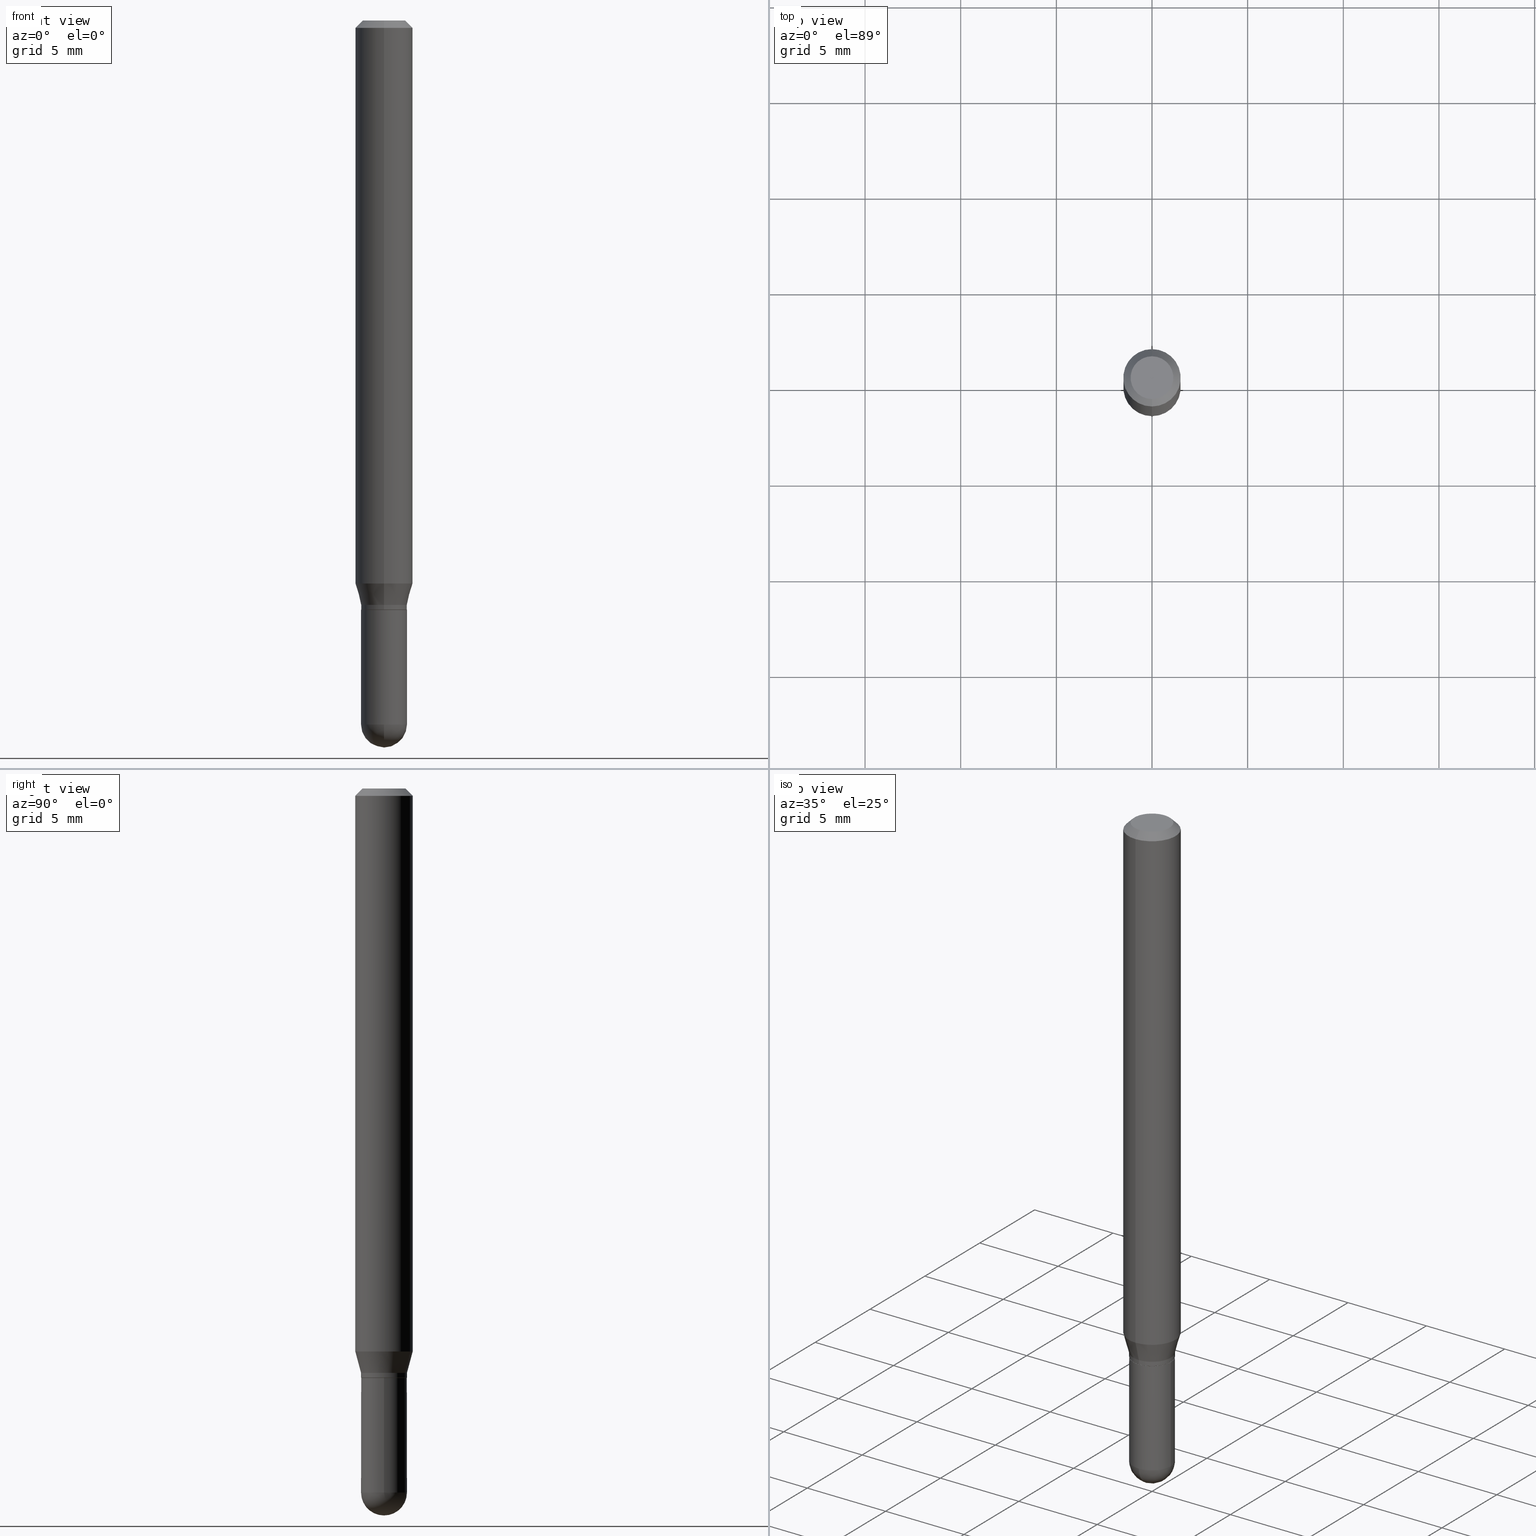
[diagram: canonical four-view strip — front | top / right | iso, engineering-drawing reading convention]
A machine part, canonical four-view strip (front | top / right | iso — engineering-drawing reading convention). The complete STEP part file that produces these views, byte-faithful:
ISO-10303-21;
HEADER;
FILE_DESCRIPTION (( 'STEP AP203' ),
    '1' );
FILE_NAME ('02953.STEP',
    '2024-03-07T22:01:41',
    ( '' ),
    ( '' ),
    'SwSTEP 2.0',
    'SolidWorks 2023',
    '' );
FILE_SCHEMA (( 'CONFIG_CONTROL_DESIGN' ));
ENDSEC;

DATA;
#1 = EDGE_CURVE ( 'NONE', #50, #485, #9, .T. ) ;
#2 = VERTEX_POINT ( 'NONE', #166 ) ;
#3 = AXIS2_PLACEMENT_3D ( 'NONE', #43, #85, #234 ) ;
#4 = PRODUCT ( '02953', '02953', '', ( #274 ) ) ;
#5 = COORDINATED_UNIVERSAL_TIME_OFFSET ( 5, 0, .BEHIND. ) ;
#6 = FACE_OUTER_BOUND ( 'NONE', #300, .T. ) ;
#7 = DATE_TIME_ROLE ( 'creation_date' ) ;
#8 = CARTESIAN_POINT ( 'NONE',  ( 2.964202519648990500E-29, -4.231953243488207905E-15, -1.212099999999999955 ) ) ;
#9 = CIRCLE ( 'NONE', #272, 0.04724999999999993788 ) ;
#10 = CALENDAR_DATE ( 2024, 7, 3 ) ;
#11 = CIRCLE ( 'NONE', #140, 0.04724999999999999339 ) ;
#12 = ORIENTED_EDGE ( 'NONE', *, *, #460, .F. ) ;
#13 = DIRECTION ( 'NONE',  ( -2.445509875133232403E-29, 3.491422525771973150E-15, 1.000000000000000000 ) ) ;
#14 = DIRECTION ( 'NONE',  ( -6.982962677686265922E-15, -1.000000000000000000, 4.626330217890369336E-15 ) ) ;
#15 = FACE_OUTER_BOUND ( 'NONE', #26, .T. ) ;
#16 = EDGE_LOOP ( 'NONE', ( #421, #394, #143, #70 ) ) ;
#17 = AXIS2_PLACEMENT_3D ( 'NONE', #455, #444, #244 ) ;
#18 = DIRECTION ( 'NONE',  ( 1.000000000000000000, -6.982962677686267499E-15, 0.000000000000000000 ) ) ;
#19 = DIRECTION ( 'NONE',  ( -2.445509875133232403E-29, 3.491422525771973150E-15, 1.000000000000000000 ) ) ;
#20 = CARTESIAN_POINT ( 'NONE',  ( 3.357314426466824445E-16, 0.04724999999999490025, -1.448850000000000415 ) ) ;
#21 = DIRECTION ( 'NONE',  ( -2.445509875133232403E-29, 3.491422525771973150E-15, 1.000000000000000000 ) ) ;
#22 = ADVANCED_FACE ( 'NONE', ( #319 ), #89, .T. ) ;
#23 = DIRECTION ( 'NONE',  ( -2.445468806185136597E-29, 3.491481338843145583E-15, 1.000000000000000000 ) ) ;
#24 = CIRCLE ( 'NONE', #476, 0.04674999999999999295 ) ;
#25 = DIRECTION ( 'NONE',  ( -2.445509875133232403E-29, 3.491422525771973150E-15, 1.000000000000000000 ) ) ;
#26 = EDGE_LOOP ( 'NONE', ( #109, #99, #392, #374 ) ) ;
#27 = DIRECTION ( 'NONE',  ( -6.982962677686266711E-15, -1.000000000000000000, 2.921762560068730989E-15 ) ) ;
#28 = ORIENTED_EDGE ( 'NONE', *, *, #129, .T. ) ;
#29 = FACE_OUTER_BOUND ( 'NONE', #171, .T. ) ;
#30 = DIRECTION ( 'NONE',  ( -2.445509875133232683E-29, 3.491422525771973150E-15, 1.000000000000000000 ) ) ;
#31 = ORIENTED_EDGE ( 'NONE', *, *, #343, .T. ) ;
#32 = CARTESIAN_POINT ( 'NONE',  ( 3.599717260347271507E-16, 0.04404999999999999888, -2.454645658922200893E-16 ) ) ;
#33 = ORIENTED_EDGE ( 'NONE', *, *, #320, .F. ) ;
#34 = CONICAL_SURFACE ( 'NONE', #313, 0.05904999999999999832, 0.7853981633974483900 ) ;
#35 = VERTEX_POINT ( 'NONE', #483 ) ;
#36 = APPLICATION_PROTOCOL_DEFINITION ( 'international standard', 'config_control_design', 1994, #381 ) ;
#37 = CIRCLE ( 'NONE', #44, 0.04724999999999998646 ) ;
#38 = AXIS2_PLACEMENT_3D ( 'NONE', #289, #54, #173 ) ;
#39 = AXIS2_PLACEMENT_3D ( 'NONE', #301, #253, #419 ) ;
#40 = APPROVAL_DATE_TIME ( #430, #278 ) ;
#41 = DIRECTION ( 'NONE',  ( 1.000000000000000000, 0.000000000000000000, 0.000000000000000000 ) ) ;
#42 = PERSON_AND_ORGANIZATION ( #408, #297 ) ;
#43 = CARTESIAN_POINT ( 'NONE',  ( 2.965425274586557416E-29, -4.233698954751094206E-15, -1.212599999999999900 ) ) ;
#44 = AXIS2_PLACEMENT_3D ( 'NONE', #366, #451, #100 ) ;
#45 = AXIS2_PLACEMENT_3D ( 'NONE', #67, #228, #149 ) ;
#46 = SHAPE_DEFINITION_REPRESENTATION ( #231, #373 ) ;
#47 = APPROVAL_PERSON_ORGANIZATION ( #469, #278, #110 ) ;
#48 = ADVANCED_FACE ( 'NONE', ( #15 ), #396, .T. ) ;
#49 = CARTESIAN_POINT ( 'NONE',  ( 0.000000000000000000, 0.000000000000000000, 0.000000000000000000 ) ) ;
#50 = VERTEX_POINT ( 'NONE', #441 ) ;
#51 = EDGE_CURVE ( 'NONE', #35, #463, #195, .T. ) ;
#52 = CARTESIAN_POINT ( 'NONE',  ( 3.357314426466476853E-16, 0.04725000000000005584, -1.649697143427259488E-16 ) ) ;
#53 = AXIS2_PLACEMENT_3D ( 'NONE', #180, #406, #130 ) ;
#54 = DIRECTION ( 'NONE',  ( -2.445509875133232403E-29, 3.491422525771973150E-15, 1.000000000000000000 ) ) ;
#55 = VERTEX_POINT ( 'NONE', #136 ) ;
#56 = CARTESIAN_POINT ( 'NONE',  ( 2.940970175835225274E-29, -4.198784729493374495E-15, -1.202599999999999891 ) ) ;
#57 = ORIENTED_EDGE ( 'NONE', *, *, #320, .T. ) ;
#58 = CARTESIAN_POINT ( 'NONE',  ( 0.04724999999999998646, -3.299449865206760074E-16, 2.303993526563579130E-30 ) ) ;
#59 = CLOSED_SHELL ( 'NONE', ( #395, #178, #86, #137, #350 ) ) ;
#60 = VERTEX_POINT ( 'NONE', #145 ) ;
#61 = APPROVAL_STATUS ( 'not_yet_approved' ) ;
#62 = EDGE_CURVE ( 'NONE', #250, #218, #292, .T. ) ;
#63 = CARTESIAN_POINT ( 'NONE',  ( -4.123439461173736383E-16, -0.05905000000000005383, -0.01499999999999988495 ) ) ;
#64 = DIRECTION ( 'NONE',  ( -6.982962677686265922E-15, -1.000000000000000000, 2.890844437739957528E-15 ) ) ;
#65 = EDGE_LOOP ( 'NONE', ( #33, #443, #162, #498, #191 ) ) ;
#66 = CARTESIAN_POINT ( 'NONE',  ( 0.000000000000000000, 0.000000000000000000, 0.000000000000000000 ) ) ;
#67 = CARTESIAN_POINT ( 'NONE',  ( 2.964202519648990500E-29, -4.231953243488207905E-15, -1.212099999999999955 ) ) ;
#68 = EDGE_LOOP ( 'NONE', ( #124, #456, #169, #186 ) ) ;
#69 = DIRECTION ( 'NONE',  ( -2.445509875133232403E-29, 3.491422525771973150E-15, 1.000000000000000000 ) ) ;
#70 = ORIENTED_EDGE ( 'NONE', *, *, #499, .F. ) ;
#71 = VECTOR ( 'NONE', #311, 39.37007874015748143 ) ;
#72 = LOCAL_TIME ( 17, 1, 41.00000000000000000, #414 ) ;
#73 = CARTESIAN_POINT ( 'NONE',  ( 2.965425274586557416E-29, -4.233698954751094206E-15, -1.212599999999999900 ) ) ;
#74 = EDGE_CURVE ( 'NONE', #259, #485, #37, .T. ) ;
#75 = CARTESIAN_POINT ( 'NONE',  ( 2.241735408097937427E-45, -3.200496379196732715E-31, -9.166740363196474463E-17 ) ) ;
#76 = CALENDAR_DATE ( 2024, 7, 3 ) ;
#77 = CARTESIAN_POINT ( 'NONE',  ( -3.299449865206764511E-16, -0.04725000000000005584, 1.649697143427259488E-16 ) ) ;
#78 = PRODUCT_DEFINITION ( 'UNKNOWN', '', #95, #454 ) ;
#79 = AXIS2_PLACEMENT_3D ( 'NONE', #245, #401, #260 ) ;
#80 = CONICAL_SURFACE ( 'NONE', #321, 0.04725000000000005584, 0.2617993877991504625 ) ;
#81 = APPROVAL_ROLE ( '' ) ;
#82 = APPLICATION_PROTOCOL_DEFINITION ( 'international standard', 'config_control_design', 1994, #424 ) ;
#83 = CARTESIAN_POINT ( 'NONE',  ( 4.195754854663673496E-16, 0.05904999999999594601, -1.158561800470687686 ) ) ;
#84 = CC_DESIGN_DATE_AND_TIME_ASSIGNMENT ( #309, #7, ( #78 ) ) ;
#85 = DIRECTION ( 'NONE',  ( -2.445509875133232403E-29, 3.491422525771973150E-15, 1.000000000000000000 ) ) ;
#86 = ADVANCED_FACE ( 'NONE', ( #29 ), #411, .F. ) ;
#87 = ORIENTED_EDGE ( 'NONE', *, *, #269, .T. ) ;
#88 = ORIENTED_EDGE ( 'NONE', *, *, #148, .T. ) ;
#89 = CYLINDRICAL_SURFACE ( 'NONE', #339, 0.04725000000000005584 ) ;
#90 = ORIENTED_EDGE ( 'NONE', *, *, #1, .T. ) ;
#91 = ADVANCED_FACE ( 'NONE', ( #368 ), #97, .T. ) ;
#92 = VERTEX_POINT ( 'NONE', #63 ) ;
#93 = CYLINDRICAL_SURFACE ( 'NONE', #177, 0.05904999999999999832 ) ;
#94 = CIRCLE ( 'NONE', #418, 0.04724999999999998646 ) ;
#95 = PRODUCT_DEFINITION_FORMATION_WITH_SPECIFIED_SOURCE ( 'ANY', '', #4, .NOT_KNOWN. ) ;
#96 = DIRECTION ( 'NONE',  ( -2.445509875133232403E-29, 3.491422525771973150E-15, 1.000000000000000000 ) ) ;
#97 = CYLINDRICAL_SURFACE ( 'NONE', #295, 0.04725000000000005584 ) ;
#98 = LINE ( 'NONE', #246, #447 ) ;
#99 = ORIENTED_EDGE ( 'NONE', *, *, #263, .T. ) ;
#100 = DIRECTION ( 'NONE',  ( 1.000000000000000000, -6.982962677686267499E-15, 0.000000000000000000 ) ) ;
#101 = CARTESIAN_POINT ( 'NONE',  ( 3.357314426466771690E-16, 0.04724999999999579536, -1.212099999999999955 ) ) ;
#102 = EDGE_LOOP ( 'NONE', ( #459, #219, #413, #205 ) ) ;
#103 = DIRECTION ( 'NONE',  ( -6.982962677686265922E-15, -1.000000000000000000, 3.491422525771973544E-15 ) ) ;
#104 = AXIS2_PLACEMENT_3D ( 'NONE', #8, #480, #276 ) ;
#105 = CC_DESIGN_APPROVAL ( #278, ( #505 ) ) ;
#106 = ORIENTED_EDGE ( 'NONE', *, *, #168, .F. ) ;
#107 = CALENDAR_DATE ( 2024, 7, 3 ) ;
#108 = DIRECTION ( 'NONE',  ( -2.445468806185136597E-29, 3.491481338843145583E-15, 1.000000000000000000 ) ) ;
#109 = ORIENTED_EDGE ( 'NONE', *, *, #155, .T. ) ;
#110 = APPROVAL_ROLE ( '' ) ;
#111 = DIRECTION ( 'NONE',  ( 1.000000000000000000, -6.982962677686267499E-15, 0.000000000000000000 ) ) ;
#112 = SPHERICAL_SURFACE ( 'NONE', #429, 0.04724999999999993788 ) ;
#113 = DIRECTION ( 'NONE',  ( 4.937700262164548042E-15, 0.7071067811865451302, -0.7071067811865499042 ) ) ;
#114 = ORIENTED_EDGE ( 'NONE', *, *, #148, .F. ) ;
#115 =( CONVERSION_BASED_UNIT ( 'INCH', #223 ) LENGTH_UNIT ( ) NAMED_UNIT ( #448 ) );
#116 = DIRECTION ( 'NONE',  ( -1.807323732225331323E-15, -0.2588190451025183525, 0.9659258262890689783 ) ) ;
#117 = AXIS2_PLACEMENT_3D ( 'NONE', #221, #146, #307 ) ;
#118 = LINE ( 'NONE', #427, #287 ) ;
#119 = DIRECTION ( 'NONE',  ( -2.445509875133232403E-29, 3.491422525771973150E-15, 1.000000000000000000 ) ) ;
#120 = AXIS2_PLACEMENT_3D ( 'NONE', #267, #108, #261 ) ;
#121 = CALENDAR_DATE ( 2024, 7, 3 ) ;
#122 = DIRECTION ( 'NONE',  ( 1.000000000000000000, -6.982962677686266711E-15, 4.876176775795935793E-29 ) ) ;
#123 = LINE ( 'NONE', #165, #71 ) ;
#124 = ORIENTED_EDGE ( 'NONE', *, *, #393, .T. ) ;
#125 = ORIENTED_EDGE ( 'NONE', *, *, #378, .T. ) ;
#126 = MANIFOLD_SOLID_BREP ( 'Body-Move/Copy2[1]', #59 ) ;
#127 = VECTOR ( 'NONE', #472, 39.37007874015748143 ) ;
#128 = DIRECTION ( 'NONE',  ( -2.445509875133232403E-29, 3.491422525771973150E-15, 1.000000000000000000 ) ) ;
#129 = EDGE_CURVE ( 'NONE', #92, #511, #229, .T. ) ;
#130 = DIRECTION ( 'NONE',  ( 1.000000000000000000, -6.982962677686256455E-15, 0.000000000000000000 ) ) ;
#131 = LINE ( 'NONE', #58, #386 ) ;
#132 = CARTESIAN_POINT ( 'NONE',  ( 3.543117479841335070E-29, -5.058632737782891656E-15, -1.448849999999999971 ) ) ;
#133 = CYLINDRICAL_SURFACE ( 'NONE', #160, 0.05904999999999999832 ) ;
#134 = AXIS2_PLACEMENT_3D ( 'NONE', #446, #96, #213 ) ;
#135 = LOCAL_TIME ( 17, 1, 41.00000000000000000, #5 ) ;
#136 = CARTESIAN_POINT ( 'NONE',  ( -4.123439461173456337E-16, -0.05905000000000405758, -1.158561800470687464 ) ) ;
#137 = ADVANCED_FACE ( 'NONE', ( #506 ), #112, .T. ) ;
#138 = ORIENTED_EDGE ( 'NONE', *, *, #460, .T. ) ;
#139 = VERTEX_POINT ( 'NONE', #337 ) ;
#140 = AXIS2_PLACEMENT_3D ( 'NONE', #270, #423, #502 ) ;
#141 = FACE_OUTER_BOUND ( 'NONE', #65, .T. ) ;
#142 = CC_DESIGN_APPROVAL ( #369, ( #95 ) ) ;
#143 = ORIENTED_EDGE ( 'NONE', *, *, #51, .F. ) ;
#144 = DATE_TIME_ROLE ( 'classification_date' ) ;
#145 = CARTESIAN_POINT ( 'NONE',  ( -0.04724999999999999339, -4.310470061985398025E-15, -1.212599999999999900 ) ) ;
#146 = DIRECTION ( 'NONE',  ( -1.000000000000000000, 6.982962677686265922E-15, -4.883557194083112340E-29 ) ) ;
#147 = ORIENTED_EDGE ( 'NONE', *, *, #155, .F. ) ;
#148 = EDGE_CURVE ( 'NONE', #184, #360, #207, .T. ) ;
#149 = DIRECTION ( 'NONE',  ( -6.982962677686265922E-15, -1.000000000000000000, 2.890844437739957528E-15 ) ) ;
#150 = DIRECTION ( 'NONE',  ( 1.839019923739601499E-15, 0.2588190451025251249, 0.9659258262890670910 ) ) ;
#151 = VECTOR ( 'NONE', #113, 39.37007874015748143 ) ;
#152 = ADVANCED_FACE ( 'NONE', ( #342 ), #346, .F. ) ;
#153 = CALENDAR_DATE ( 2024, 7, 3 ) ;
#154 = LINE ( 'NONE', #507, #482 ) ;
#155 = EDGE_CURVE ( 'NONE', #139, #324, #398, .T. ) ;
#156 = PERSON_AND_ORGANIZATION_ROLE ( 'creator' ) ;
#157 = CARTESIAN_POINT ( 'NONE',  ( 2.833274324003204060E-29, -4.045028767662292358E-15, -1.158561800470687464 ) ) ;
#158 = PERSON_AND_ORGANIZATION ( #408, #297 ) ;
#159 = CYLINDRICAL_SURFACE ( 'NONE', #215, 0.04724999999999998646 ) ;
#160 = AXIS2_PLACEMENT_3D ( 'NONE', #285, #249, #403 ) ;
#161 = DIRECTION ( 'NONE',  ( 0.000000000000000000, 0.000000000000000000, 1.000000000000000000 ) ) ;
#162 = ORIENTED_EDGE ( 'NONE', *, *, #495, .T. ) ;
#163 = FACE_OUTER_BOUND ( 'NONE', #291, .T. ) ;
#164 = ORIENTED_EDGE ( 'NONE', *, *, #306, .F. ) ;
#165 = CARTESIAN_POINT ( 'NONE',  ( 4.195754854663390985E-16, 0.05904999999999999832, -2.061685001468349986E-16 ) ) ;
#166 = CARTESIAN_POINT ( 'NONE',  ( 0.04724999999999999339, -4.563715258001873701E-15, -1.212599999999999900 ) ) ;
#167 = CIRCLE ( 'NONE', #134, 0.05904999999999999832 ) ;
#168 = EDGE_CURVE ( 'NONE', #222, #250, #190, .T. ) ;
#169 = ORIENTED_EDGE ( 'NONE', *, *, #129, .F. ) ;
#170 = DIRECTION ( 'NONE',  ( -2.445509875133232403E-29, 3.491422525771973150E-15, 1.000000000000000000 ) ) ;
#171 = EDGE_LOOP ( 'NONE', ( #283, #404 ) ) ;
#172 = CARTESIAN_POINT ( 'NONE',  ( 3.543117479841335070E-29, -5.058632737782891656E-15, -1.448849999999999971 ) ) ;
#173 = DIRECTION ( 'NONE',  ( -6.982962677686265133E-15, -1.000000000000000000, 3.491422525771973150E-15 ) ) ;
#174 = SECURITY_CLASSIFICATION_LEVEL ( 'unclassified' ) ;
#175 = ADVANCED_FACE ( 'NONE', ( #183 ), #93, .T. ) ;
#176 = FACE_OUTER_BOUND ( 'NONE', #332, .T. ) ;
#177 = AXIS2_PLACEMENT_3D ( 'NONE', #211, #19, #333 ) ;
#178 = ADVANCED_FACE ( 'NONE', ( #497 ), #367, .T. ) ;
#179 = DIRECTION ( 'NONE',  ( 5.024295867788190974E-15, 0.7071067811865681119, 0.7071067811865270336 ) ) ;
#180 = CARTESIAN_POINT ( 'NONE',  ( 2.965375474380096235E-29, -4.233770271481197693E-15, -1.212599999999999900 ) ) ;
#181 = ORIENTED_EDGE ( 'NONE', *, *, #241, .T. ) ;
#182 = DIRECTION ( 'NONE',  ( 2.438088387897960049E-29, -3.491481338843145188E-15, -1.000000000000000000 ) ) ;
#183 = FACE_OUTER_BOUND ( 'NONE', #68, .T. ) ;
#184 = VERTEX_POINT ( 'NONE', #323 ) ;
#185 = LINE ( 'NONE', #510, #151 ) ;
#186 = ORIENTED_EDGE ( 'NONE', *, *, #273, .F. ) ;
#187 = DIRECTION ( 'NONE',  ( -2.445468806185136597E-29, 3.491481338843145583E-15, 1.000000000000000000 ) ) ;
#188 = CARTESIAN_POINT ( 'NONE',  ( 3.075995059520799729E-16, 0.04404999999999999888, -1.996308640762377601E-16 ) ) ;
#189 = DIRECTION ( 'NONE',  ( -1.000000000000000000, 6.982962677686265922E-15, -4.876176775795935793E-29 ) ) ;
#190 = CIRCLE ( 'NONE', #196, 0.04674999999999999295 ) ;
#191 = ORIENTED_EDGE ( 'NONE', *, *, #200, .F. ) ;
#192 = CARTESIAN_POINT ( 'NONE',  ( -3.264535051818032208E-16, -0.04675000000000423261, -1.212599999999999900 ) ) ;
#193 = ORIENTED_EDGE ( 'NONE', *, *, #378, .F. ) ;
#194 = EDGE_CURVE ( 'NONE', #324, #139, #328, .T. ) ;
#195 = CIRCLE ( 'NONE', #264, 0.04724999999999998646 ) ;
#196 = AXIS2_PLACEMENT_3D ( 'NONE', #370, #25, #27 ) ;
#197 = CC_DESIGN_PERSON_AND_ORGANIZATION_ASSIGNMENT ( #158, #325, ( #95 ) ) ;
#198 = DATE_AND_TIME ( #10, #135 ) ;
#199 = DIRECTION ( 'NONE',  ( -4.851104656540964275E-15, -0.7071067811865500152, -0.7071067811865450192 ) ) ;
#200 = EDGE_CURVE ( 'NONE', #60, #2, #362, .T. ) ;
#201 = CARTESIAN_POINT ( 'NONE',  ( -3.299449865206404101E-16, -0.04725000000000502409, -1.448849999999999749 ) ) ;
#202 = VECTOR ( 'NONE', #30, 39.37007874015748143 ) ;
#203 = ADVANCED_FACE ( 'NONE', ( #176 ), #331, .F. ) ;
#204 = DIRECTION ( 'NONE',  ( -6.982962677686266711E-15, -1.000000000000000000, 2.921762560068730989E-15 ) ) ;
#205 = ORIENTED_EDGE ( 'NONE', *, *, #425, .F. ) ;
#206 = DIRECTION ( 'NONE',  ( 6.982962677686265922E-15, 1.000000000000000000, -3.505890868245046092E-15 ) ) ;
#207 = CIRCLE ( 'NONE', #237, 0.04404999999999999888 ) ;
#208 = CONICAL_SURFACE ( 'NONE', #329, 0.04674999999999999295, 0.7853981633974739252 ) ;
#209 = UNCERTAINTY_MEASURE_WITH_UNIT (LENGTH_MEASURE( 1.000000000000000082E-05 ), #115, 'distance_accuracy_value', 'NONE');
#210 = AXIS2_PLACEMENT_3D ( 'NONE', #172, #187, #111 ) ;
#211 = CARTESIAN_POINT ( 'NONE',  ( 0.000000000000000000, 0.000000000000000000, 0.000000000000000000 ) ) ;
#212 = ORIENTED_EDGE ( 'NONE', *, *, #263, .F. ) ;
#213 = DIRECTION ( 'NONE',  ( -6.982962677686265922E-15, -1.000000000000000000, 4.626330217890369336E-15 ) ) ;
#214 = EDGE_LOOP ( 'NONE', ( #303, #417, #31, #247 ) ) ;
#215 = AXIS2_PLACEMENT_3D ( 'NONE', #49, #318, #122 ) ;
#216 = DIRECTION ( 'NONE',  ( -2.445468806185136877E-29, 3.491481338843145188E-15, 1.000000000000000000 ) ) ;
#217 = LOCAL_TIME ( 17, 1, 41.00000000000000000, #298 ) ;
#218 = VERTEX_POINT ( 'NONE', #101 ) ;
#219 = ORIENTED_EDGE ( 'NONE', *, *, #255, .T. ) ;
#220 = DIRECTION ( 'NONE',  ( 1.000000000000000000, -6.982962677686266711E-15, 4.883557194083112901E-29 ) ) ;
#221 = CARTESIAN_POINT ( 'NONE',  ( 3.539076819124962473E-29, -5.064419193908863088E-15, -1.448849999999999971 ) ) ;
#222 = VERTEX_POINT ( 'NONE', #397 ) ;
#223 = LENGTH_MEASURE_WITH_UNIT ( LENGTH_MEASURE( 0.02539999999999999897 ), #336 );
#224 = CLOSED_SHELL ( 'NONE', ( #91, #365, #512, #175, #48, #390, #251, #464, #152, #203, #422, #22 ) ) ;
#225 = EDGE_LOOP ( 'NONE', ( #181, #88 ) ) ;
#226 = CC_DESIGN_PERSON_AND_ORGANIZATION_ASSIGNMENT ( #509, #375, ( #505 ) ) ;
#227 = DIRECTION ( 'NONE',  ( -6.982962677686266711E-15, -1.000000000000000000, 2.921762560068730989E-15 ) ) ;
#228 = DIRECTION ( 'NONE',  ( -2.445509875133232403E-29, 3.491422525771973150E-15, 1.000000000000000000 ) ) ;
#229 = CIRCLE ( 'NONE', #79, 0.05904999999999999832 ) ;
#230 = CONICAL_SURFACE ( 'NONE', #3, 0.04674999999999999295, 0.7853981633974739252 ) ;
#231 = PRODUCT_DEFINITION_SHAPE ( 'NONE', 'NONE',  #78 ) ;
#232 = COORDINATED_UNIVERSAL_TIME_OFFSET ( 5, 0, .BEHIND. ) ;
#233 = APPROVAL_DATE_TIME ( #198, #409 ) ;
#234 = DIRECTION ( 'NONE',  ( -6.982962677686266711E-15, -1.000000000000000000, 2.921762560068730989E-15 ) ) ;
#235 = FACE_OUTER_BOUND ( 'NONE', #280, .T. ) ;
#236 = AXIS2_PLACEMENT_3D ( 'NONE', #248, #182, #189 ) ;
#237 = AXIS2_PLACEMENT_3D ( 'NONE', #75, #13, #428 ) ;
#238 = CONICAL_SURFACE ( 'NONE', #39, 0.05904999999999999832, 0.7853981633974483900 ) ;
#239 = DIRECTION ( 'NONE',  ( 1.000000000000000000, -7.105427357601001070E-15, 4.926315508542082329E-29 ) ) ;
#240 = ORIENTED_EDGE ( 'NONE', *, *, #74, .F. ) ;
#241 = EDGE_CURVE ( 'NONE', #360, #184, #467, .T. ) ;
#242 = LINE ( 'NONE', #52, #382 ) ;
#243 = ORIENTED_EDGE ( 'NONE', *, *, #437, .T. ) ;
#244 = DIRECTION ( 'NONE',  ( -6.982962677686265922E-15, -1.000000000000000000, 3.491422525771973150E-15 ) ) ;
#245 = CARTESIAN_POINT ( 'NONE',  ( 3.668264812699871200E-31, -5.237133788657991279E-17, -0.01500000000000009139 ) ) ;
#246 = CARTESIAN_POINT ( 'NONE',  ( 3.357314426466771197E-16, 0.04724999999999585781, -1.202600000000000113 ) ) ;
#247 = ORIENTED_EDGE ( 'NONE', *, *, #425, .T. ) ;
#248 = CARTESIAN_POINT ( 'NONE',  ( 3.299449865207056883E-16, 0.04724999999999576067, -1.212600000000000122 ) ) ;
#249 = DIRECTION ( 'NONE',  ( -2.445509875133232403E-29, 3.491422525771973150E-15, 1.000000000000000000 ) ) ;
#250 = VERTEX_POINT ( 'NONE', #490 ) ;
#251 = ADVANCED_FACE ( 'NONE', ( #452 ), #133, .T. ) ;
#252 = AXIS2_PLACEMENT_3D ( 'NONE', #376, #170, #64 ) ;
#253 = DIRECTION ( 'NONE',  ( 2.445509875133232403E-29, -3.491422525771973150E-15, -1.000000000000000000 ) ) ;
#254 = DIRECTION ( 'NONE',  ( 1.000000000000000000, -6.982962677686267499E-15, 0.000000000000000000 ) ) ;
#255 = EDGE_CURVE ( 'NONE', #371, #55, #167, .T. ) ;
#256 = ORIENTED_EDGE ( 'NONE', *, *, #74, .T. ) ;
#257 = DATE_AND_TIME ( #107, #217 ) ;
#258 = FACE_OUTER_BOUND ( 'NONE', #359, .T. ) ;
#259 = VERTEX_POINT ( 'NONE', #327 ) ;
#260 = DIRECTION ( 'NONE',  ( -6.982962677686265922E-15, -1.000000000000000000, 3.505890868245046092E-15 ) ) ;
#261 = DIRECTION ( 'NONE',  ( 1.000000000000000000, -6.982962677686266711E-15, 4.876176775795935793E-29 ) ) ;
#262 = ORIENTED_EDGE ( 'NONE', *, *, #308, .F. ) ;
#263 = EDGE_CURVE ( 'NONE', #324, #371, #98, .T. ) ;
#264 = AXIS2_PLACEMENT_3D ( 'NONE', #132, #23, #254 ) ;
#265 = VECTOR ( 'NONE', #179, 39.37007874015748143 ) ;
#266 = CIRCLE ( 'NONE', #117, 0.04724999999999993788 ) ;
#267 = CARTESIAN_POINT ( 'NONE',  ( 0.000000000000000000, 0.000000000000000000, 0.000000000000000000 ) ) ;
#268 = APPROVAL_PERSON_ORGANIZATION ( #471, #369, #81 ) ;
#269 = EDGE_CURVE ( 'NONE', #222, #290, #412, .T. ) ;
#270 = CARTESIAN_POINT ( 'NONE',  ( 2.965375474380096235E-29, -4.233770271481197693E-15, -1.212599999999999900 ) ) ;
#271 = CC_DESIGN_PERSON_AND_ORGANIZATION_ASSIGNMENT ( #475, #156, ( #78 ) ) ;
#272 = AXIS2_PLACEMENT_3D ( 'NONE', #364, #239, #316 ) ;
#273 = EDGE_CURVE ( 'NONE', #55, #92, #154, .T. ) ;
#274 = MECHANICAL_CONTEXT ( 'NONE', #381, 'mechanical' ) ;
#275 = DIRECTION ( 'NONE',  ( 2.445509875133232123E-29, -3.491422525771973150E-15, -1.000000000000000000 ) ) ;
#276 = DIRECTION ( 'NONE',  ( -6.982962677686265922E-15, -1.000000000000000000, 2.890844437739957528E-15 ) ) ;
#277 = DIRECTION ( 'NONE',  ( 6.982962677686265922E-15, 1.000000000000000000, -3.491422525771973150E-15 ) ) ;
#278 = APPROVAL ( #61, 'UNSPECIFIED' ) ;
#279 = VECTOR ( 'NONE', #199, 39.37007874015748143 ) ;
#280 = EDGE_LOOP ( 'NONE', ( #494, #125, #87, #12 ) ) ;
#281 = CARTESIAN_POINT ( 'NONE',  ( 3.668264812699871200E-31, -5.237133788657991279E-17, -0.01500000000000009139 ) ) ;
#282 = DIRECTION ( 'NONE',  ( -6.982962677686265922E-15, -1.000000000000000000, 2.890844437739957528E-15 ) ) ;
#283 = ORIENTED_EDGE ( 'NONE', *, *, #308, .T. ) ;
#284 = CARTESIAN_POINT ( 'NONE',  ( 2.940970175835225274E-29, -4.198784729493374495E-15, -1.202599999999999891 ) ) ;
#285 = CARTESIAN_POINT ( 'NONE',  ( 0.000000000000000000, 0.000000000000000000, 0.000000000000000000 ) ) ;
#286 = ORIENTED_EDGE ( 'NONE', *, *, #255, .F. ) ;
#287 = VECTOR ( 'NONE', #116, 39.37007874015748854 ) ;
#288 = CC_DESIGN_APPROVAL ( #409, ( #78 ) ) ;
#289 = CARTESIAN_POINT ( 'NONE',  ( 2.241735408097937427E-45, -3.200496379196732715E-31, -9.166740363196474463E-17 ) ) ;
#290 = VERTEX_POINT ( 'NONE', #420 ) ;
#291 = EDGE_LOOP ( 'NONE', ( #341, #57, #262, #380, #256 ) ) ;
#292 = LINE ( 'NONE', #496, #265 ) ;
#293 = CARTESIAN_POINT ( 'NONE',  ( 3.539076819124962473E-29, -5.064419193908863088E-15, -1.448849999999999971 ) ) ;
#294 = ORIENTED_EDGE ( 'NONE', *, *, #343, .F. ) ;
#295 = AXIS2_PLACEMENT_3D ( 'NONE', #66, #458, #103 ) ;
#296 = VECTOR ( 'NONE', #416, 39.37007874015748143 ) ;
#297 = ORGANIZATION ( 'UNSPECIFIED', 'UNSPECIFIED', '' ) ;
#298 = COORDINATED_UNIVERSAL_TIME_OFFSET ( 5, 0, .BEHIND. ) ;
#299 = CYLINDRICAL_SURFACE ( 'NONE', #120, 0.04724999999999998646 ) ;
#300 = EDGE_LOOP ( 'NONE', ( #212, #345, #439, #286 ) ) ;
#301 = CARTESIAN_POINT ( 'NONE',  ( 3.668264812699871200E-31, -5.237133788657991279E-17, -0.01500000000000009139 ) ) ;
#302 = MANIFOLD_SOLID_BREP ( 'Body-Move/Copy2[2]', #224 ) ;
#303 = ORIENTED_EDGE ( 'NONE', *, *, #437, .F. ) ;
#304 = EDGE_CURVE ( 'NONE', #290, #218, #461, .T. ) ;
#305 = AXIS2_PLACEMENT_3D ( 'NONE', #281, #473, #481 ) ;
#306 = EDGE_CURVE ( 'NONE', #50, #463, #266, .T. ) ;
#307 = DIRECTION ( 'NONE',  ( -6.982962677686266711E-15, -1.000000000000000000, 0.000000000000000000 ) ) ;
#308 = EDGE_CURVE ( 'NONE', #2, #60, #11, .T. ) ;
#309 = DATE_AND_TIME ( #121, #492 ) ;
#310 = CC_DESIGN_PERSON_AND_ORGANIZATION_ASSIGNMENT ( #387, #352, ( #95 ) ) ;
#311 = DIRECTION ( 'NONE',  ( -2.445509875133232683E-29, 3.491422525771973150E-15, 1.000000000000000000 ) ) ;
#312 = APPROVAL_ROLE ( '' ) ;
#313 = AXIS2_PLACEMENT_3D ( 'NONE', #358, #400, #206 ) ;
#314 = APPROVAL_DATE_TIME ( #388, #369 ) ;
#315 = CARTESIAN_POINT ( 'NONE',  ( 2.965425274586557416E-29, -4.233698954751094206E-15, -1.212599999999999900 ) ) ;
#316 = DIRECTION ( 'NONE',  ( 7.105427357601001070E-15, 1.000000000000000000, 0.000000000000000000 ) ) ;
#317 = LINE ( 'NONE', #433, #279 ) ;
#318 = DIRECTION ( 'NONE',  ( -2.445468806185136597E-29, 3.491481338843145583E-15, 1.000000000000000000 ) ) ;
#319 = FACE_OUTER_BOUND ( 'NONE', #384, .T. ) ;
#320 = EDGE_CURVE ( 'NONE', #35, #60, #465, .T. ) ;
#321 = AXIS2_PLACEMENT_3D ( 'NONE', #440, #119, #353 ) ;
#322 = APPROVAL_PERSON_ORGANIZATION ( #354, #409, #312 ) ;
#323 = CARTESIAN_POINT ( 'NONE',  ( -3.536586717851222218E-16, -0.04404999999999999888, 6.212975862829066168E-17 ) ) ;
#324 = VERTEX_POINT ( 'NONE', #379 ) ;
#325 = PERSON_AND_ORGANIZATION_ROLE ( 'design_supplier' ) ;
#326 = ORIENTED_EDGE ( 'NONE', *, *, #340, .F. ) ;
#327 = CARTESIAN_POINT ( 'NONE',  ( 0.04724999999999998646, -4.976146491152720682E-15, -1.448849999999999971 ) ) ;
#328 = CIRCLE ( 'NONE', #348, 0.04725000000000005584 ) ;
#329 = AXIS2_PLACEMENT_3D ( 'NONE', #73, #69, #227 ) ;
#330 = AXIS2_PLACEMENT_3D ( 'NONE', #385, #161, #41 ) ;
#331 = PLANE ( 'NONE',  #17 ) ;
#332 = EDGE_LOOP ( 'NONE', ( #106, #193 ) ) ;
#333 = DIRECTION ( 'NONE',  ( -6.982962677686265922E-15, -1.000000000000000000, 3.491422525771973150E-15 ) ) ;
#334 = EDGE_CURVE ( 'NONE', #139, #55, #118, .T. ) ;
#335 = ORIENTED_EDGE ( 'NONE', *, *, #62, .T. ) ;
#336 =( LENGTH_UNIT ( ) NAMED_UNIT ( * ) SI_UNIT ( $, .METRE. ) );
#337 = CARTESIAN_POINT ( 'NONE',  ( -3.299449865206470168E-16, -0.04725000000000425388, -1.202599999999999669 ) ) ;
#338 = ORIENTED_EDGE ( 'NONE', *, *, #194, .F. ) ;
#339 = AXIS2_PLACEMENT_3D ( 'NONE', #489, #479, #436 ) ;
#340 = EDGE_CURVE ( 'NONE', #290, #139, #383, .T. ) ;
#341 = ORIENTED_EDGE ( 'NONE', *, *, #499, .T. ) ;
#342 = FACE_OUTER_BOUND ( 'NONE', #225, .T. ) ;
#343 = EDGE_CURVE ( 'NONE', #360, #511, #185, .T. ) ;
#344 = CARTESIAN_POINT ( 'NONE',  ( -0.04724999999999998646, 3.357314426466472416E-16, -2.324196830145442465E-30 ) ) ;
#345 = ORIENTED_EDGE ( 'NONE', *, *, #194, .T. ) ;
#346 = PLANE ( 'NONE',  #491 ) ;
#347 =( NAMED_UNIT ( * ) SI_UNIT ( $, .STERADIAN. ) SOLID_ANGLE_UNIT ( ) );
#348 = AXIS2_PLACEMENT_3D ( 'NONE', #56, #21, #487 ) ;
#349 = DIRECTION ( 'NONE',  ( -2.445509875133232683E-29, 3.491422525771973150E-15, 1.000000000000000000 ) ) ;
#350 = ADVANCED_FACE ( 'NONE', ( #141 ), #299, .T. ) ;
#351 = APPROVAL_STATUS ( 'not_yet_approved' ) ;
#352 = PERSON_AND_ORGANIZATION_ROLE ( 'creator' ) ;
#353 = DIRECTION ( 'NONE',  ( -6.982962677686265922E-15, -1.000000000000000000, 2.890844437739957528E-15 ) ) ;
#354 = PERSON_AND_ORGANIZATION ( #408, #297 ) ;
#355 = FACE_OUTER_BOUND ( 'NONE', #214, .T. ) ;
#356 = CIRCLE ( 'NONE', #210, 0.04724999999999998646 ) ;
#357 = DIRECTION ( 'NONE',  ( -2.445509875133232403E-29, 3.491422525771973150E-15, 1.000000000000000000 ) ) ;
#358 = CARTESIAN_POINT ( 'NONE',  ( 3.668264812699871200E-31, -5.237133788657991279E-17, -0.01500000000000009139 ) ) ;
#359 = EDGE_LOOP ( 'NONE', ( #445, #335, #442, #402 ) ) ;
#360 = VERTEX_POINT ( 'NONE', #32 ) ;
#361 = ORIENTED_EDGE ( 'NONE', *, *, #304, .T. ) ;
#362 = CIRCLE ( 'NONE', #53, 0.04724999999999999339 ) ;
#363 = CARTESIAN_POINT ( 'NONE',  ( 3.543117479841335070E-29, -5.058632737782891656E-15, -1.448849999999999971 ) ) ;
#364 = CARTESIAN_POINT ( 'NONE',  ( 3.539076819124962473E-29, -5.064419193908863088E-15, -1.448849999999999971 ) ) ;
#365 = ADVANCED_FACE ( 'NONE', ( #258 ), #208, .T. ) ;
#366 = CARTESIAN_POINT ( 'NONE',  ( 3.543117479841335070E-29, -5.058632737782891656E-15, -1.448849999999999971 ) ) ;
#367 = SPHERICAL_SURFACE ( 'NONE', #389, 0.04724999999999993788 ) ;
#368 = FACE_OUTER_BOUND ( 'NONE', #391, .T. ) ;
#369 = APPROVAL ( #431, 'UNSPECIFIED' ) ;
#370 = CARTESIAN_POINT ( 'NONE',  ( 2.965425274586557416E-29, -4.233698954751094206E-15, -1.212599999999999900 ) ) ;
#371 = VERTEX_POINT ( 'NONE', #83 ) ;
#372 = CIRCLE ( 'NONE', #438, 0.05904999999999999832 ) ;
#373 = ADVANCED_BREP_SHAPE_REPRESENTATION ( '02953', ( #126, #302, #330 ), #449 ) ;
#374 = ORIENTED_EDGE ( 'NONE', *, *, #334, .F. ) ;
#375 = PERSON_AND_ORGANIZATION_ROLE ( 'classification_officer' ) ;
#376 = CARTESIAN_POINT ( 'NONE',  ( 2.940970175835225274E-29, -4.198784729493374495E-15, -1.202599999999999891 ) ) ;
#377 = EDGE_LOOP ( 'NONE', ( #164, #90, #240, #508 ) ) ;
#378 = EDGE_CURVE ( 'NONE', #250, #222, #24, .T. ) ;
#379 = CARTESIAN_POINT ( 'NONE',  ( 3.776534640565222593E-16, 0.04724999999999585781, -1.202600000000000113 ) ) ;
#380 = ORIENTED_EDGE ( 'NONE', *, *, #474, .F. ) ;
#381 = APPLICATION_CONTEXT ( 'configuration controlled 3d designs of mechanical parts and assemblies' ) ;
#382 = VECTOR ( 'NONE', #488, 39.37007874015748143 ) ;
#383 = LINE ( 'NONE', #77, #202 ) ;
#384 = EDGE_LOOP ( 'NONE', ( #407, #138, #466, #338 ) ) ;
#385 = CARTESIAN_POINT ( 'NONE',  ( 0.000000000000000000, 0.000000000000000000, 0.000000000000000000 ) ) ;
#386 = VECTOR ( 'NONE', #216, 39.37007874015748143 ) ;
#387 = PERSON_AND_ORGANIZATION ( #408, #297 ) ;
#388 = DATE_AND_TIME ( #76, #462 ) ;
#389 = AXIS2_PLACEMENT_3D ( 'NONE', #293, #493, #399 ) ;
#390 = ADVANCED_FACE ( 'NONE', ( #6 ), #80, .T. ) ;
#391 = EDGE_LOOP ( 'NONE', ( #361, #503, #147, #326 ) ) ;
#392 = ORIENTED_EDGE ( 'NONE', *, *, #393, .F. ) ;
#393 = EDGE_CURVE ( 'NONE', #55, #371, #372, .T. ) ;
#394 = ORIENTED_EDGE ( 'NONE', *, *, #306, .T. ) ;
#395 = ADVANCED_FACE ( 'NONE', ( #163 ), #159, .T. ) ;
#396 = CONICAL_SURFACE ( 'NONE', #405, 0.04725000000000005584, 0.2617993877991504625 ) ;
#397 = CARTESIAN_POINT ( 'NONE',  ( -3.264535051818032208E-16, -0.04675000000000423261, -1.212599999999999900 ) ) ;
#398 = CIRCLE ( 'NONE', #252, 0.04725000000000005584 ) ;
#399 = DIRECTION ( 'NONE',  ( -6.982962677686266711E-15, -1.000000000000000000, 5.781688875479930044E-15 ) ) ;
#400 = DIRECTION ( 'NONE',  ( 2.445509875133232403E-29, -3.491422525771973150E-15, -1.000000000000000000 ) ) ;
#401 = DIRECTION ( 'NONE',  ( -2.445509875133232403E-29, 3.491422525771973150E-15, 1.000000000000000000 ) ) ;
#402 = ORIENTED_EDGE ( 'NONE', *, *, #269, .F. ) ;
#403 = DIRECTION ( 'NONE',  ( -6.982962677686265922E-15, -1.000000000000000000, 3.491422525771973150E-15 ) ) ;
#404 = ORIENTED_EDGE ( 'NONE', *, *, #200, .T. ) ;
#405 = AXIS2_PLACEMENT_3D ( 'NONE', #284, #128, #282 ) ;
#406 = DIRECTION ( 'NONE',  ( -2.445468806185136597E-29, 3.491481338843145583E-15, 1.000000000000000000 ) ) ;
#407 = ORIENTED_EDGE ( 'NONE', *, *, #468, .F. ) ;
#408 = PERSON ( 'UNSPECIFIED', 'UNSPECIFIED', 'UNSPECIFIED', ('UNSPECIFIED'), ('UNSPECIFIED'), ('UNSPECIFIED') ) ;
#409 = APPROVAL ( #351, 'UNSPECIFIED' ) ;
#410 = EDGE_CURVE ( 'NONE', #371, #511, #123, .T. ) ;
#411 = PLANE ( 'NONE',  #236 ) ;
#412 = LINE ( 'NONE', #192, #296 ) ;
#413 = ORIENTED_EDGE ( 'NONE', *, *, #273, .T. ) ;
#414 = COORDINATED_UNIVERSAL_TIME_OFFSET ( 5, 0, .BEHIND. ) ;
#415 = CARTESIAN_POINT ( 'NONE',  ( 4.195754854663675961E-16, 0.05904999999999994281, -0.01500000000000029955 ) ) ;
#416 = DIRECTION ( 'NONE',  ( -4.937700262164674260E-15, -0.7071067811865632269, 0.7071067811865319186 ) ) ;
#417 = ORIENTED_EDGE ( 'NONE', *, *, #241, .F. ) ;
#418 = AXIS2_PLACEMENT_3D ( 'NONE', #363, #486, #18 ) ;
#419 = DIRECTION ( 'NONE',  ( 6.982962677686265922E-15, 1.000000000000000000, -3.505890868245046092E-15 ) ) ;
#420 = CARTESIAN_POINT ( 'NONE',  ( -3.299449865206470168E-16, -0.04725000000000431633, -1.212099999999999733 ) ) ;
#421 = ORIENTED_EDGE ( 'NONE', *, *, #1, .F. ) ;
#422 = ADVANCED_FACE ( 'NONE', ( #235 ), #230, .T. ) ;
#423 = DIRECTION ( 'NONE',  ( -2.445468806185136597E-29, 3.491481338843145583E-15, 1.000000000000000000 ) ) ;
#424 = APPLICATION_CONTEXT ( 'configuration controlled 3d designs of mechanical parts and assemblies' ) ;
#425 = EDGE_CURVE ( 'NONE', #511, #92, #432, .T. ) ;
#426 = COORDINATED_UNIVERSAL_TIME_OFFSET ( 5, 0, .BEHIND. ) ;
#427 = CARTESIAN_POINT ( 'NONE',  ( -3.299449865206470168E-16, -0.04725000000000425388, -1.202599999999999669 ) ) ;
#428 = DIRECTION ( 'NONE',  ( -6.982962677686265133E-15, -1.000000000000000000, 3.491422525771973150E-15 ) ) ;
#429 = AXIS2_PLACEMENT_3D ( 'NONE', #501, #220, #435 ) ;
#430 = DATE_AND_TIME ( #153, #72 ) ;
#431 = APPROVAL_STATUS ( 'not_yet_approved' ) ;
#432 = CIRCLE ( 'NONE', #305, 0.05904999999999999832 ) ;
#433 = CARTESIAN_POINT ( 'NONE',  ( -4.051124067684085231E-16, -0.05905000000000005383, -0.01499999999999988495 ) ) ;
#434 = PRODUCT_RELATED_PRODUCT_CATEGORY ( 'detail', '', ( #4 ) ) ;
#435 = DIRECTION ( 'NONE',  ( -6.982962677686266711E-15, -1.000000000000000000, 5.781688875479930044E-15 ) ) ;
#436 = DIRECTION ( 'NONE',  ( -6.982962677686265922E-15, -1.000000000000000000, 3.491422525771973544E-15 ) ) ;
#437 = EDGE_CURVE ( 'NONE', #184, #92, #317, .T. ) ;
#438 = AXIS2_PLACEMENT_3D ( 'NONE', #157, #478, #14 ) ;
#439 = ORIENTED_EDGE ( 'NONE', *, *, #334, .T. ) ;
#440 = CARTESIAN_POINT ( 'NONE',  ( 2.940970175835225274E-29, -4.198784729493374495E-15, -1.202599999999999891 ) ) ;
#441 = CARTESIAN_POINT ( 'NONE',  ( 3.652604889859023774E-29, -5.232284915232187596E-15, -1.496099999999999985 ) ) ;
#442 = ORIENTED_EDGE ( 'NONE', *, *, #304, .F. ) ;
#443 = ORIENTED_EDGE ( 'NONE', *, *, #51, .T. ) ;
#444 = DIRECTION ( 'NONE',  ( -2.445509875133232123E-29, 3.491422525771973150E-15, 1.000000000000000000 ) ) ;
#445 = ORIENTED_EDGE ( 'NONE', *, *, #168, .T. ) ;
#446 = CARTESIAN_POINT ( 'NONE',  ( 2.833274324003204060E-29, -4.045028767662292358E-15, -1.158561800470687464 ) ) ;
#447 = VECTOR ( 'NONE', #150, 39.37007874015748854 ) ;
#448 = DIMENSIONAL_EXPONENTS ( 1.000000000000000000, 0.000000000000000000, 0.000000000000000000, 0.000000000000000000, 0.000000000000000000, 0.000000000000000000, 0.000000000000000000 ) ;
#449 =( GEOMETRIC_REPRESENTATION_CONTEXT ( 3 ) GLOBAL_UNCERTAINTY_ASSIGNED_CONTEXT ( ( #209 ) ) GLOBAL_UNIT_ASSIGNED_CONTEXT ( ( #115, #470, #347 ) ) REPRESENTATION_CONTEXT ( 'NONE', 'WORKASPACE' ) );
#450 = CC_DESIGN_PERSON_AND_ORGANIZATION_ASSIGNMENT ( #42, #477, ( #4 ) ) ;
#451 = DIRECTION ( 'NONE',  ( -2.445468806185136597E-29, 3.491481338843145583E-15, 1.000000000000000000 ) ) ;
#452 = FACE_OUTER_BOUND ( 'NONE', #102, .T. ) ;
#453 = EDGE_LOOP ( 'NONE', ( #114, #243, #28, #294 ) ) ;
#454 = DESIGN_CONTEXT ( 'detailed design', #424, 'design' ) ;
#455 = CARTESIAN_POINT ( 'NONE',  ( 2.965425274586557416E-29, -4.233698954751094206E-15, -1.212599999999999900 ) ) ;
#456 = ORIENTED_EDGE ( 'NONE', *, *, #410, .T. ) ;
#457 = CC_DESIGN_DATE_AND_TIME_ASSIGNMENT ( #257, #144, ( #505 ) ) ;
#458 = DIRECTION ( 'NONE',  ( -2.445509875133232403E-29, 3.491422525771973150E-15, 1.000000000000000000 ) ) ;
#459 = ORIENTED_EDGE ( 'NONE', *, *, #410, .F. ) ;
#460 = EDGE_CURVE ( 'NONE', #218, #290, #504, .T. ) ;
#461 = CIRCLE ( 'NONE', #45, 0.04725000000000005584 ) ;
#462 = LOCAL_TIME ( 17, 1, 41.00000000000000000, #232 ) ;
#463 = VERTEX_POINT ( 'NONE', #201 ) ;
#464 = ADVANCED_FACE ( 'NONE', ( #355 ), #34, .T. ) ;
#465 = LINE ( 'NONE', #344, #127 ) ;
#466 = ORIENTED_EDGE ( 'NONE', *, *, #340, .T. ) ;
#467 = CIRCLE ( 'NONE', #38, 0.04404999999999999888 ) ;
#468 = EDGE_CURVE ( 'NONE', #218, #324, #242, .T. ) ;
#469 = PERSON_AND_ORGANIZATION ( #408, #297 ) ;
#470 =( NAMED_UNIT ( * ) PLANE_ANGLE_UNIT ( ) SI_UNIT ( $, .RADIAN. ) );
#471 = PERSON_AND_ORGANIZATION ( #408, #297 ) ;
#472 = DIRECTION ( 'NONE',  ( -2.445468806185136877E-29, 3.491481338843145188E-15, 1.000000000000000000 ) ) ;
#473 = DIRECTION ( 'NONE',  ( -2.445509875133232403E-29, 3.491422525771973150E-15, 1.000000000000000000 ) ) ;
#474 = EDGE_CURVE ( 'NONE', #259, #2, #131, .T. ) ;
#475 = PERSON_AND_ORGANIZATION ( #408, #297 ) ;
#476 = AXIS2_PLACEMENT_3D ( 'NONE', #315, #357, #204 ) ;
#477 = PERSON_AND_ORGANIZATION_ROLE ( 'design_owner' ) ;
#478 = DIRECTION ( 'NONE',  ( -2.445509875133232403E-29, 3.491422525771973150E-15, 1.000000000000000000 ) ) ;
#479 = DIRECTION ( 'NONE',  ( -2.445509875133232403E-29, 3.491422525771973150E-15, 1.000000000000000000 ) ) ;
#480 = DIRECTION ( 'NONE',  ( -2.445509875133232403E-29, 3.491422525771973150E-15, 1.000000000000000000 ) ) ;
#481 = DIRECTION ( 'NONE',  ( -6.982962677686265922E-15, -1.000000000000000000, 3.505890868245046092E-15 ) ) ;
#482 = VECTOR ( 'NONE', #349, 39.37007874015748143 ) ;
#483 = CARTESIAN_POINT ( 'NONE',  ( -0.04724999999999998646, -4.310470061985398025E-15, -1.448849999999999971 ) ) ;
#484 = CC_DESIGN_SECURITY_CLASSIFICATION ( #505, ( #95 ) ) ;
#485 = VERTEX_POINT ( 'NONE', #20 ) ;
#486 = DIRECTION ( 'NONE',  ( -2.445468806185136597E-29, 3.491481338843145583E-15, 1.000000000000000000 ) ) ;
#487 = DIRECTION ( 'NONE',  ( -6.982962677686265922E-15, -1.000000000000000000, 2.890844437739957528E-15 ) ) ;
#488 = DIRECTION ( 'NONE',  ( -2.445509875133232683E-29, 3.491422525771973150E-15, 1.000000000000000000 ) ) ;
#489 = CARTESIAN_POINT ( 'NONE',  ( 0.000000000000000000, 0.000000000000000000, 0.000000000000000000 ) ) ;
#490 = CARTESIAN_POINT ( 'NONE',  ( 3.339550858072768183E-16, 0.04674999999999576022, -1.212600000000000122 ) ) ;
#491 = AXIS2_PLACEMENT_3D ( 'NONE', #188, #275, #277 ) ;
#492 = LOCAL_TIME ( 17, 1, 41.00000000000000000, #426 ) ;
#493 = DIRECTION ( 'NONE',  ( 1.000000000000000000, -6.982962677686266711E-15, 4.883557194083112901E-29 ) ) ;
#494 = ORIENTED_EDGE ( 'NONE', *, *, #62, .F. ) ;
#495 = EDGE_CURVE ( 'NONE', #463, #259, #94, .T. ) ;
#496 = CARTESIAN_POINT ( 'NONE',  ( 3.321787289678764184E-16, 0.04674999999999576022, -1.212600000000000122 ) ) ;
#497 = FACE_OUTER_BOUND ( 'NONE', #377, .T. ) ;
#498 = ORIENTED_EDGE ( 'NONE', *, *, #474, .T. ) ;
#499 = EDGE_CURVE ( 'NONE', #485, #35, #356, .T. ) ;
#500 = FACE_OUTER_BOUND ( 'NONE', #453, .T. ) ;
#501 = CARTESIAN_POINT ( 'NONE',  ( 3.539076819124962473E-29, -5.064419193908863088E-15, -1.448849999999999971 ) ) ;
#502 = DIRECTION ( 'NONE',  ( 1.000000000000000000, -6.982962677686256455E-15, 0.000000000000000000 ) ) ;
#503 = ORIENTED_EDGE ( 'NONE', *, *, #468, .T. ) ;
#504 = CIRCLE ( 'NONE', #104, 0.04725000000000005584 ) ;
#505 = SECURITY_CLASSIFICATION ( '', '', #174 ) ;
#506 = FACE_OUTER_BOUND ( 'NONE', #16, .T. ) ;
#507 = CARTESIAN_POINT ( 'NONE',  ( -4.123439461173739834E-16, -0.05904999999999999832, 2.061685001468349986E-16 ) ) ;
#508 = ORIENTED_EDGE ( 'NONE', *, *, #495, .F. ) ;
#509 = PERSON_AND_ORGANIZATION ( #408, #297 ) ;
#510 = CARTESIAN_POINT ( 'NONE',  ( 4.123439461173743285E-16, 0.05904999999999994975, -0.01500000000000029955 ) ) ;
#511 = VERTEX_POINT ( 'NONE', #415 ) ;
#512 = ADVANCED_FACE ( 'NONE', ( #500 ), #238, .T. ) ;
ENDSEC;
END-ISO-10303-21;
